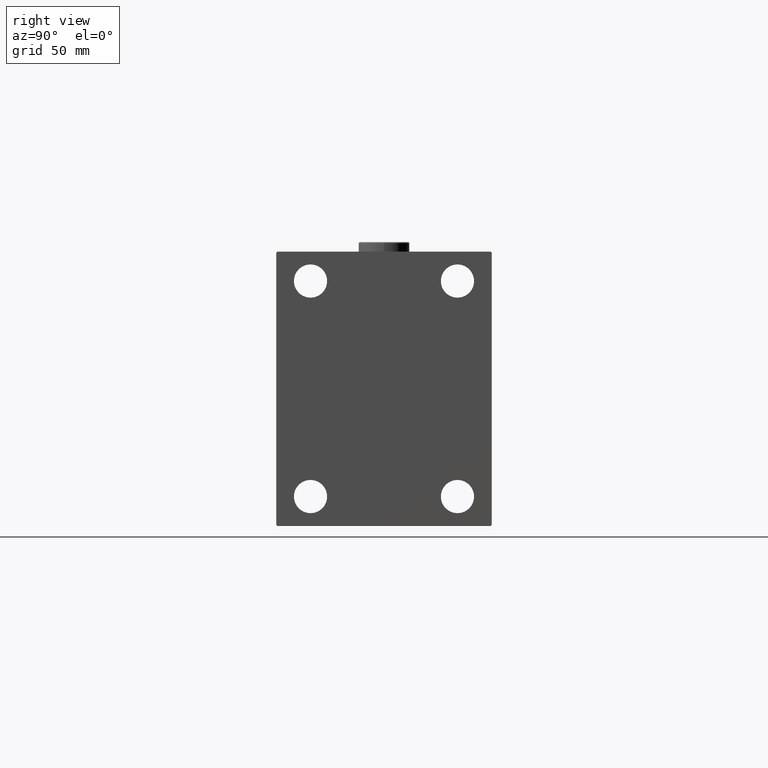
[diagram: clean part render]
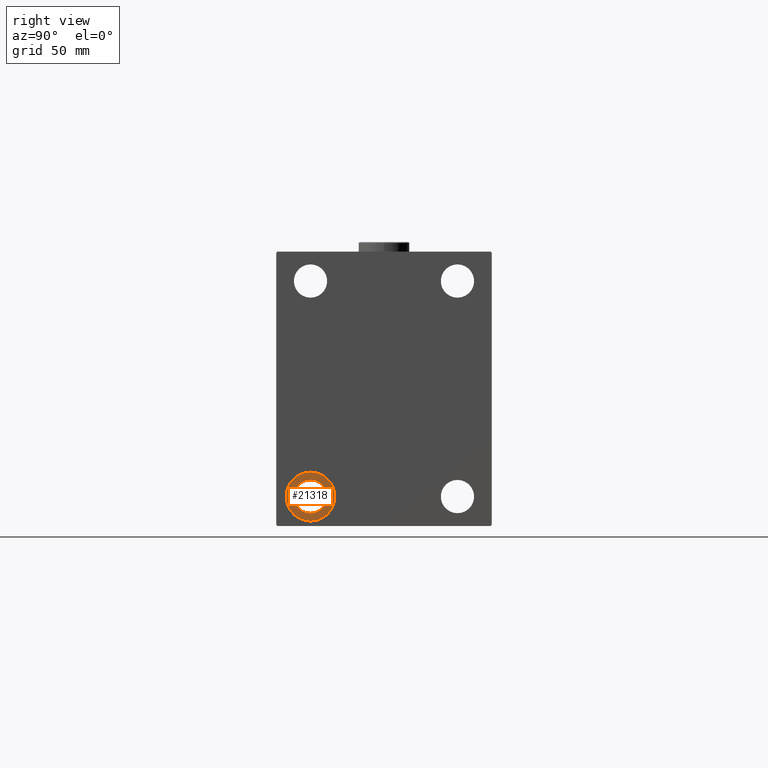
[diagram: same view with one face highlighted and labeled with its STEP entity id]
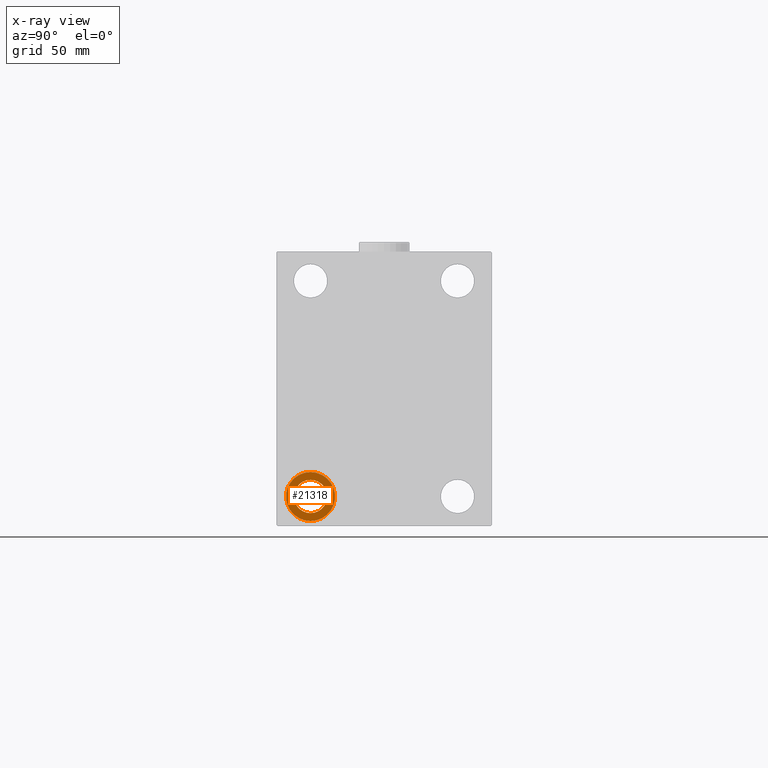
[diagram: x-ray of the same camera — body ghosted, the highlighted face saturated]
A machine part, right view. The second image highlights one B-rep face of the part: STEP entity #21318.
The next image is the same camera in x-ray: the body ghosted, the highlighted face saturated — about 0% of this face is hidden behind the body in this view.
In plain terms, the highlighted planar face has unit normal (1, 0, 0).
Its self-contained STEP definition (entity closure, byte-faithful):
#1574 = ORIENTED_EDGE ( 'NONE', *, *, #44787, .F. ) ;
#1801 = DIRECTION ( 'NONE',  ( -1.000000000000000000, -0.000000000000000000, -0.000000000000000000 ) ) ;
#3267 = ORIENTED_EDGE ( 'NONE', *, *, #29405, .F. ) ;
#3806 = CIRCLE ( 'NONE', #13658, 12.49999999999999645 ) ;
#4793 = FACE_OUTER_BOUND ( 'NONE', #40700, .T. ) ;
#5030 = CARTESIAN_POINT ( 'NONE',  ( 236.0000000000000000, 0.000000000000000000, 0.000000000000000000 ) ) ;
#6100 = DIRECTION ( 'NONE',  ( 0.000000000000000000, 0.000000000000000000, -1.000000000000000000 ) ) ;
#6572 = DIRECTION ( 'NONE',  ( -1.000000000000000000, -0.000000000000000000, -0.000000000000000000 ) ) ;
#7181 = AXIS2_PLACEMENT_3D ( 'NONE', #5030, #12181, #44282 ) ;
#7817 = EDGE_CURVE ( 'NONE', #16615, #21557, #42721, .T. ) ;
#11375 = ORIENTED_EDGE ( 'NONE', *, *, #36579, .T. ) ;
#11412 = DIRECTION ( 'NONE',  ( -1.000000000000000000, -0.000000000000000000, -0.000000000000000000 ) ) ;
#12181 = DIRECTION ( 'NONE',  ( 1.000000000000000000, 0.000000000000000000, -0.000000000000000000 ) ) ;
#12752 = CARTESIAN_POINT ( 'NONE',  ( 236.0000000000000000, -37.50000000000002132, -54.99999999999999289 ) ) ;
#12773 = CIRCLE ( 'NONE', #39368, 8.499999999999992895 ) ;
#13658 = AXIS2_PLACEMENT_3D ( 'NONE', #43996, #11412, #21658 ) ;
#13951 = CARTESIAN_POINT ( 'NONE',  ( 236.0000000000000000, -37.50000000000002132, -54.99999999999999289 ) ) ;
#14665 = VERTEX_POINT ( 'NONE', #23075 ) ;
#15497 = ORIENTED_EDGE ( 'NONE', *, *, #7817, .T. ) ;
#16615 = VERTEX_POINT ( 'NONE', #18369 ) ;
#18369 = CARTESIAN_POINT ( 'NONE',  ( 236.0000000000000000, -37.50000000000002132, -63.49999999999998579 ) ) ;
#18435 = AXIS2_PLACEMENT_3D ( 'NONE', #13951, #6572, #6100 ) ;
#19087 = FACE_BOUND ( 'NONE', #32134, .T. ) ;
#21318 = ADVANCED_FACE ( 'NONE', ( #4793, #19087 ), #29782, .T. ) ;
#21557 = VERTEX_POINT ( 'NONE', #26112 ) ;
#21658 = DIRECTION ( 'NONE',  ( 0.000000000000000000, 0.000000000000000000, 1.000000000000000000 ) ) ;
#21719 = AXIS2_PLACEMENT_3D ( 'NONE', #12752, #1801, #27252 ) ;
#21835 = VERTEX_POINT ( 'NONE', #43886 ) ;
#23075 = CARTESIAN_POINT ( 'NONE',  ( 236.0000000000000000, -37.50000000000002132, -67.49999999999998579 ) ) ;
#26112 = CARTESIAN_POINT ( 'NONE',  ( 236.0000000000000000, -37.50000000000002132, -46.50000000000000000 ) ) ;
#27252 = DIRECTION ( 'NONE',  ( 0.000000000000000000, 0.000000000000000000, 1.000000000000000000 ) ) ;
#29405 = EDGE_CURVE ( 'NONE', #14665, #21835, #42216, .T. ) ;
#29782 = PLANE ( 'NONE',  #7181 ) ;
#30050 = DIRECTION ( 'NONE',  ( 0.000000000000000000, 0.000000000000000000, -1.000000000000000000 ) ) ;
#32134 = EDGE_LOOP ( 'NONE', ( #11375, #15497 ) ) ;
#36579 = EDGE_CURVE ( 'NONE', #21557, #16615, #12773, .T. ) ;
#37199 = CARTESIAN_POINT ( 'NONE',  ( 236.0000000000000000, -37.50000000000002132, -54.99999999999999289 ) ) ;
#39368 = AXIS2_PLACEMENT_3D ( 'NONE', #37199, #44560, #30050 ) ;
#40700 = EDGE_LOOP ( 'NONE', ( #3267, #1574 ) ) ;
#42216 = CIRCLE ( 'NONE', #21719, 12.49999999999999645 ) ;
#42721 = CIRCLE ( 'NONE', #18435, 8.499999999999992895 ) ;
#43886 = CARTESIAN_POINT ( 'NONE',  ( 236.0000000000000000, -37.50000000000002132, -42.49999999999999289 ) ) ;
#43996 = CARTESIAN_POINT ( 'NONE',  ( 236.0000000000000000, -37.50000000000002132, -54.99999999999999289 ) ) ;
#44282 = DIRECTION ( 'NONE',  ( 0.000000000000000000, 0.000000000000000000, 1.000000000000000000 ) ) ;
#44560 = DIRECTION ( 'NONE',  ( -1.000000000000000000, -0.000000000000000000, -0.000000000000000000 ) ) ;
#44787 = EDGE_CURVE ( 'NONE', #21835, #14665, #3806, .T. ) ;